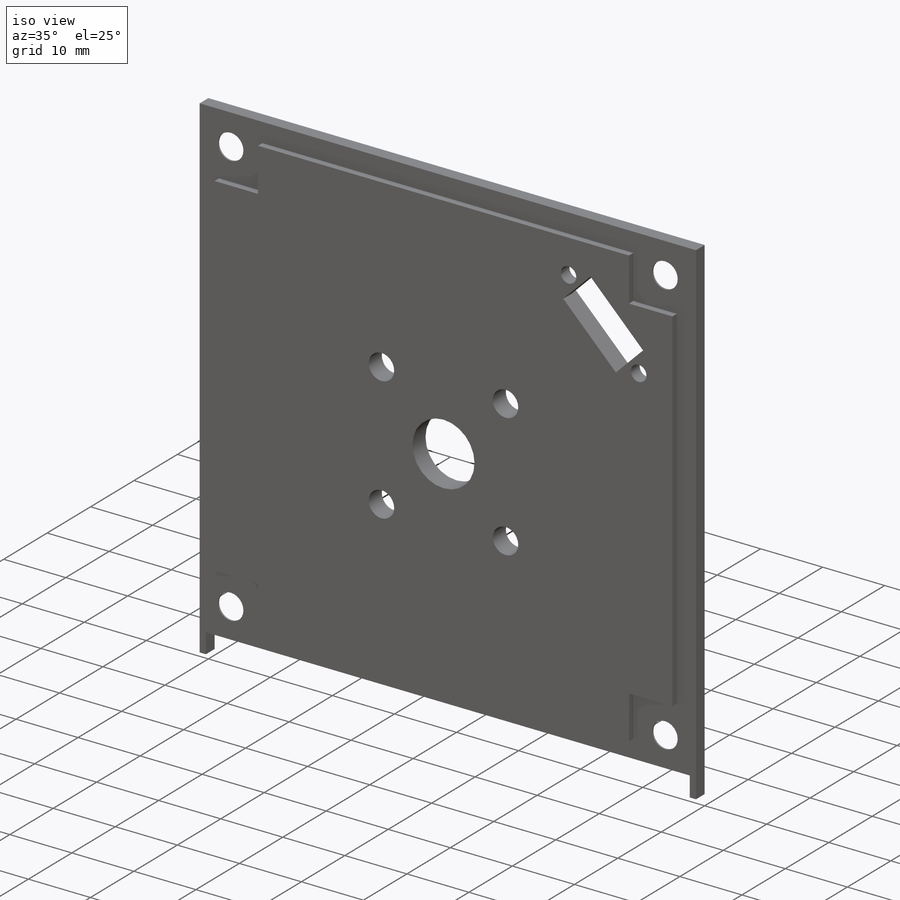
[diagram: iso view]
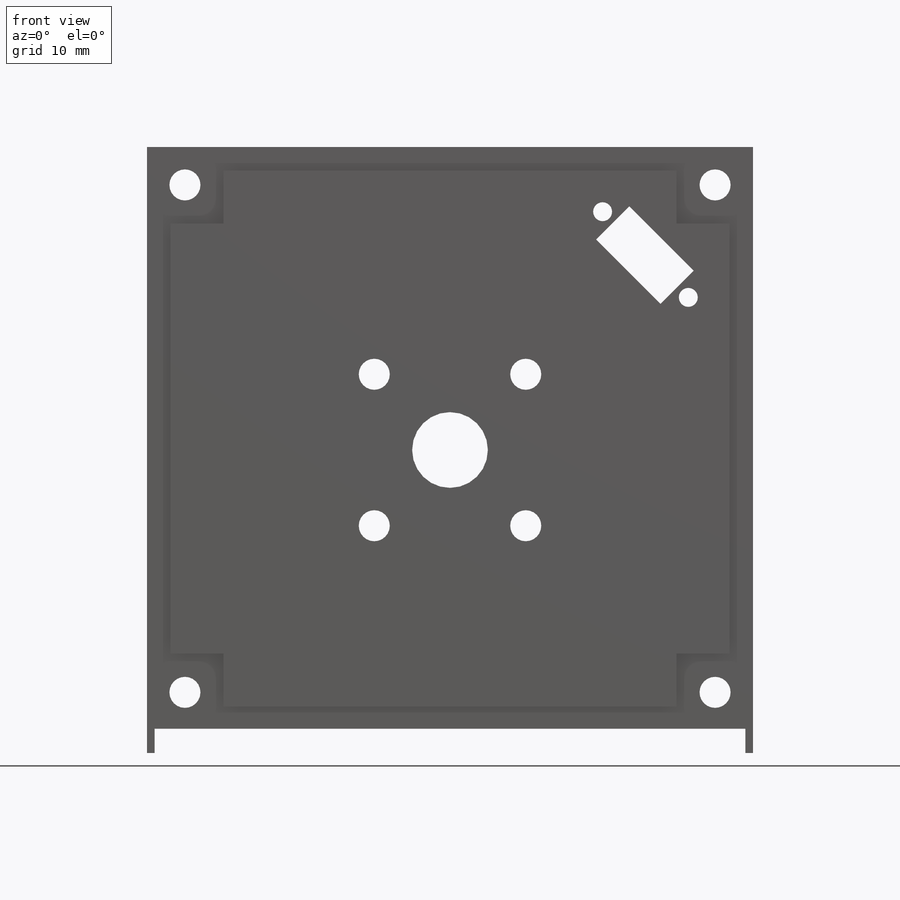
[diagram: front view]
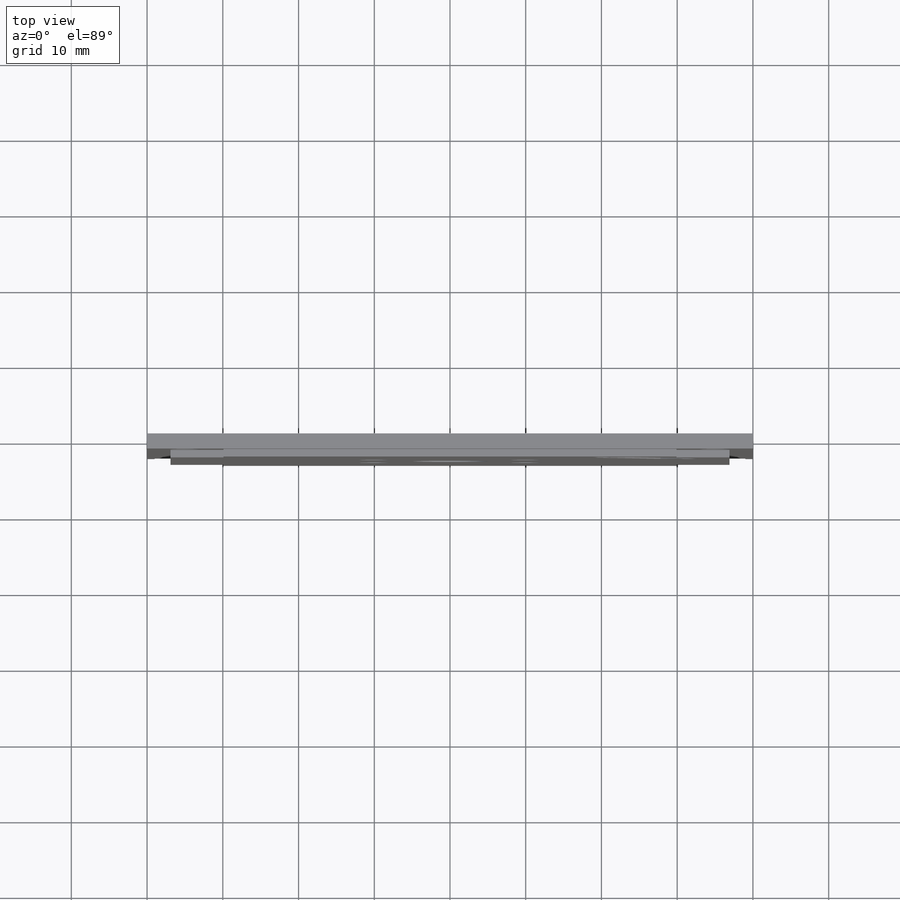
[diagram: top view]
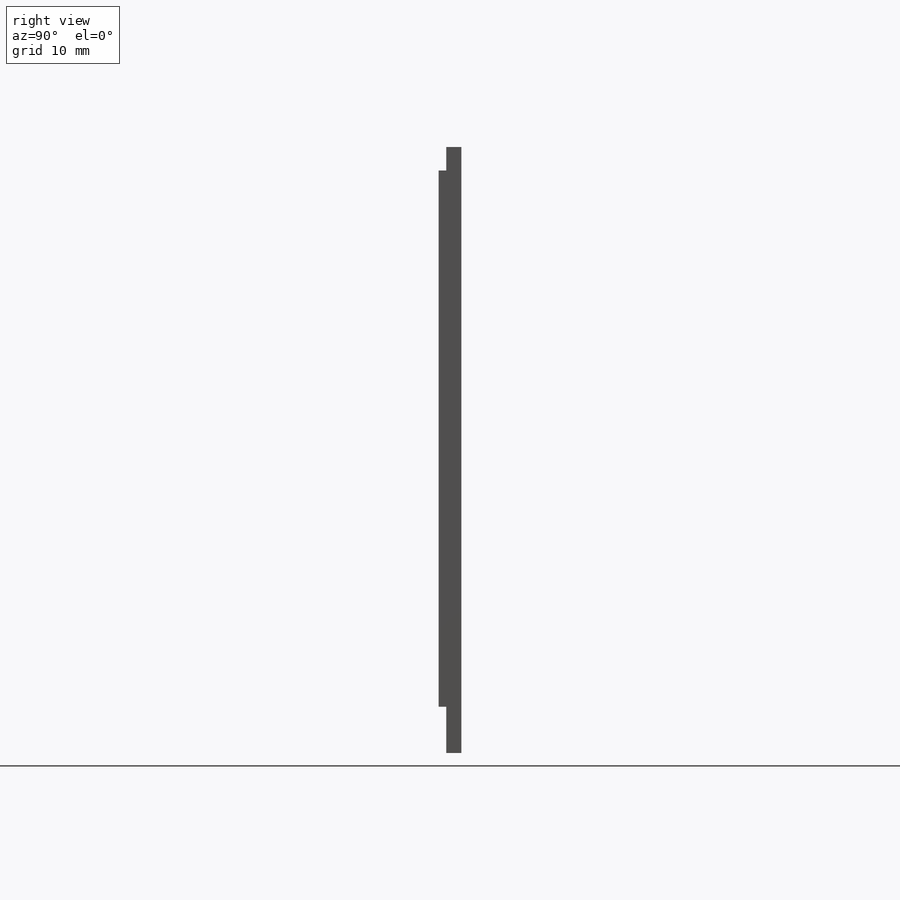
[diagram: right view]
SOLIDWORKS PART (.sldprt)
format: sldprt  version: not decoded by parser v0  size: 336,896 bytes
history: native  units: mm
features: sketch x6, cut_extrude x4, plane x3, extrude x2, material x1, chamfer x1 (+10 scaffold rows collapsed)
feature tree (27):
  scaffold x10  (default folders/planes/origin — collapsed)
  material  "Matériau <non spécifié>"
  plane  "Plan de face"
  plane  "Plan de dessus"
  plane  "Plan de droite"
  sketch  "Esquisse1"  dims[D1=80.0mm D2=80.0mm]
  extrude  "Boss.-Extru.1"  Depth=2mm
  sketch  "Esquisse2"  dims[c1.D1=3.1mm c1.D2=3.1mm c1.D3=3.1mm c1.D4=3.1mm c1.D5=10.1mm c1.D6=13.1mm c1.D7=13.1mm c1.D8=10.1mm c1.D9=10.1mm c1.D10=10.1mm c1.D11=10.1mm c1.D12=10.1mm c2.D4=7.0mm]
  extrude  "Boss.-Extru.2"  Depth=1mm
  sketch  "Esquisse3"  dims[D1=4.1mm D2=4.1mm D3=4.1mm D4=4.1mm D5=5.0mm D6=5.0mm D7=5.0mm D8=5.0mm D9=5.0mm D10=5.0mm D11=8.0mm D12=8.0mm D13=3.2mm D14=1.0mm D15=1.0mm]
  cut_extrude  "Enlèv. mat.-Extru.1"  [1 undecoded]
  sketch  "Esquisse4"  dims[D1=4.1mm D2=4.1mm D3=4.1mm D4=4.1mm D5=10.0mm D6=40.0mm D7=40.0mm D8=30.0mm D9=30.0mm D10=30.0mm D11=30.0mm D12=30.0mm D13=30.0mm D14=30.0mm D15=30.0mm]
  cut_extrude  "Enlèv. mat.-Extru.2"  [1 undecoded]
  chamfer  "Chanfrein1"  Distance=1.75mm Angle=56deg
  sketch  "Esquisse6"  dims[c1.D6=60.0mm c1.D1=20.0mm c1.D2=6.1mm c1.D3=6.1mm c2.D1=~5.219068mm c3.D1=90.0deg c3.D2=20.0mm c3.D3=6.2mm c3.D4=~10.815152mm c4.D4=45.0deg c5.D4=80.0mm c6.D4=45.0deg c6.D5=5.0mm c6.D7=40.0mm c6.D8=40.0mm c6.D9=5.0mm]
  cut_extrude  "Enlèv. mat.-Extru.3"  Depth=1mm
  sketch  "Esquisse8"  dims[D3=2.5mm D4=2.5mm D1=12.0mm D2=4.0mm D5=3.0mm D6=3.0mm D7=2.0mm D8=2.0mm]
  cut_extrude  "Enlèv. mat.-Extru.4"  [1 undecoded]
decode coverage: 10 of 13 modeling features carry decoded parameters
note: ~ marks probable driven/reference dimensions
note: 3 parameter values undecoded
summary: no parameter record found for 3 features
note: suppression state not decoded; provenance and decode notes live in map.json
